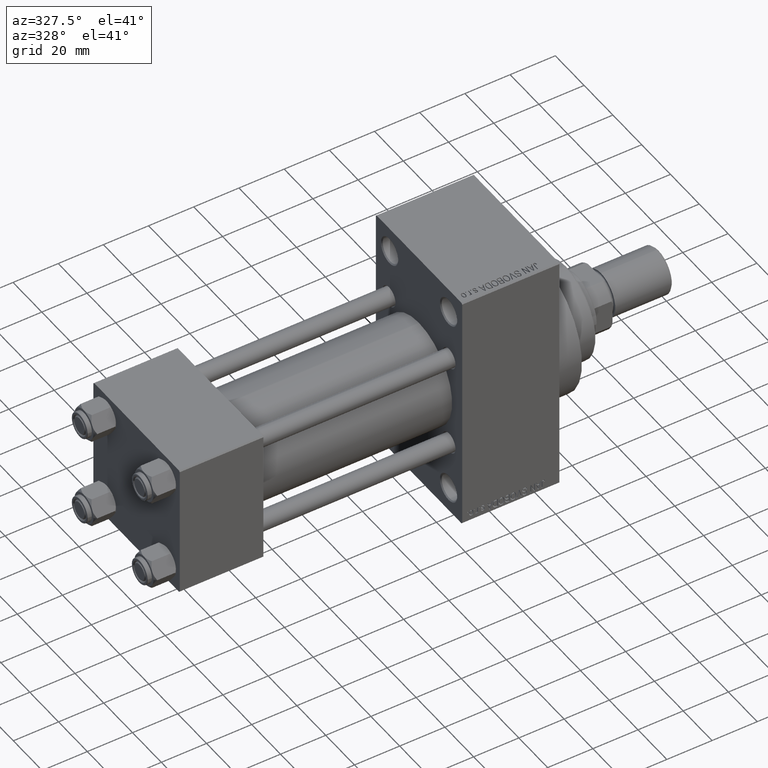
[diagram: clean part render]
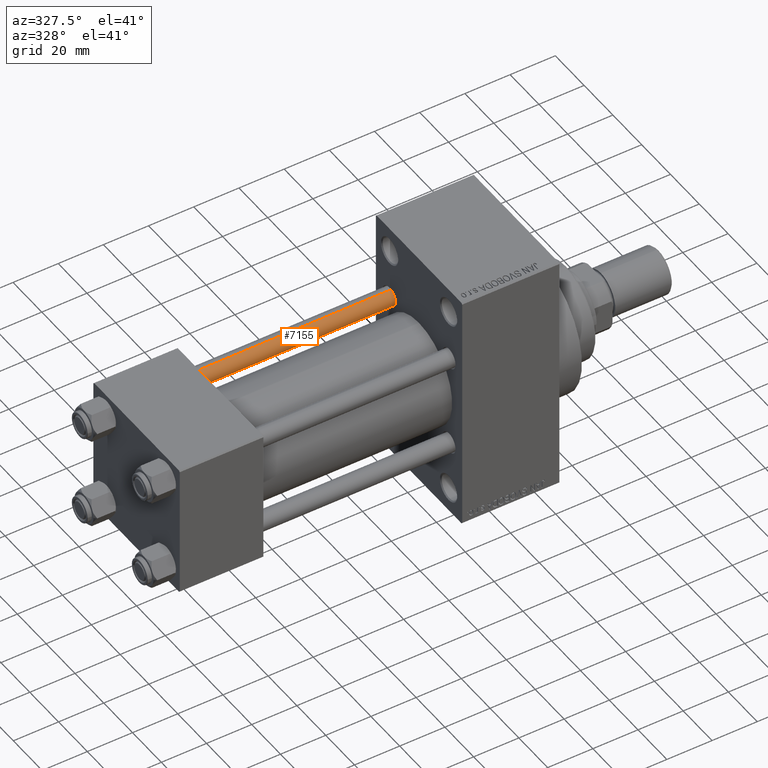
[diagram: same view with one face highlighted and labeled with its STEP entity id]
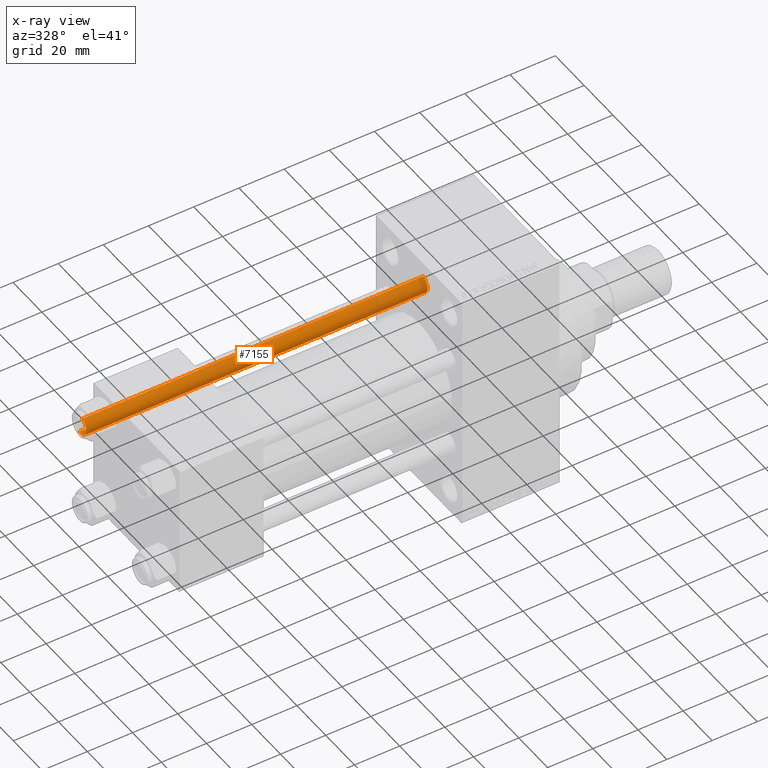
[diagram: x-ray of the same camera — body ghosted, the highlighted face saturated]
A machine part, auxiliary view. The second image highlights one B-rep face of the part: STEP entity #7155.
The next image is the same camera in x-ray: the body ghosted, the highlighted face saturated — about 2% of this face is hidden behind the body in this view.
In plain terms, the highlighted cylindrical surface (edge-blend (fillet) strip) has radius 4 mm, axis along (-1, -0, 0).
Its self-contained STEP definition (entity closure, byte-faithful):
#182 = VERTEX_POINT ( 'NONE', #27810 ) ;
#509 = VECTOR ( 'NONE', #9675, 1000.000000000000000 ) ;
#1035 = AXIS2_PLACEMENT_3D ( 'NONE', #8149, #22122, #26221 ) ;
#1364 = CARTESIAN_POINT ( 'NONE',  ( 0.000000000000000000, 0.000000000000000000, 151.5000000000000284 ) ) ;
#2723 = EDGE_LOOP ( 'NONE', ( #16481, #5066, #22183, #18442 ) ) ;
#5066 = ORIENTED_EDGE ( 'NONE', *, *, #8261, .T. ) ;
#6165 = DIRECTION ( 'NONE',  ( 1.000000000000000000, 0.000000000000000000, 0.000000000000000000 ) ) ;
#6936 = FACE_OUTER_BOUND ( 'NONE', #2723, .T. ) ;
#7155 = ADVANCED_FACE ( 'NONE', ( #6936 ), #18042, .T. ) ;
#8149 = CARTESIAN_POINT ( 'NONE',  ( 0.000000000000000000, 0.000000000000000000, 152.0000000000000000 ) ) ;
#8261 = EDGE_CURVE ( 'NONE', #33403, #182, #21866, .T. ) ;
#9675 = DIRECTION ( 'NONE',  ( -0.000000000000000000, -0.000000000000000000, -1.000000000000000000 ) ) ;
#14052 = DIRECTION ( 'NONE',  ( -0.000000000000000000, -0.000000000000000000, -1.000000000000000000 ) ) ;
#15172 = CARTESIAN_POINT ( 'NONE',  ( -4.000000000000000000, 0.000000000000000000, 0.5000000000000281997 ) ) ;
#16481 = ORIENTED_EDGE ( 'NONE', *, *, #37080, .F. ) ;
#17677 = CARTESIAN_POINT ( 'NONE',  ( 4.000000000000000000, 4.898587196589412829E-16, 152.0000000000000000 ) ) ;
#18042 = CYLINDRICAL_SURFACE ( 'NONE', #1035, 4.000000000000000000 ) ;
#18442 = ORIENTED_EDGE ( 'NONE', *, *, #32468, .T. ) ;
#20505 = CARTESIAN_POINT ( 'NONE',  ( -4.000000000000000000, 0.000000000000000000, 152.0000000000000000 ) ) ;
#21866 = CIRCLE ( 'NONE', #46512, 4.000000000000000000 ) ;
#22104 = CIRCLE ( 'NONE', #22902, 4.000000000000000000 ) ;
#22122 = DIRECTION ( 'NONE',  ( -0.000000000000000000, -0.000000000000000000, -1.000000000000000000 ) ) ;
#22183 = ORIENTED_EDGE ( 'NONE', *, *, #34994, .T. ) ;
#22902 = AXIS2_PLACEMENT_3D ( 'NONE', #35618, #36090, #42611 ) ;
#23869 = CARTESIAN_POINT ( 'NONE',  ( 4.000000000000000000, 4.898587196589412829E-16, 0.5000000000000281997 ) ) ;
#25235 = VECTOR ( 'NONE', #14052, 1000.000000000000000 ) ;
#26221 = DIRECTION ( 'NONE',  ( -1.000000000000000000, 0.000000000000000000, 0.000000000000000000 ) ) ;
#27810 = CARTESIAN_POINT ( 'NONE',  ( -4.000000000000000000, 0.000000000000000000, 151.5000000000000284 ) ) ;
#31581 = LINE ( 'NONE', #20505, #509 ) ;
#32468 = EDGE_CURVE ( 'NONE', #40862, #33245, #22104, .T. ) ;
#33245 = VERTEX_POINT ( 'NONE', #23869 ) ;
#33403 = VERTEX_POINT ( 'NONE', #44359 ) ;
#34994 = EDGE_CURVE ( 'NONE', #182, #40862, #31581, .T. ) ;
#35359 = DIRECTION ( 'NONE',  ( 0.000000000000000000, 0.000000000000000000, -1.000000000000000000 ) ) ;
#35618 = CARTESIAN_POINT ( 'NONE',  ( 0.000000000000000000, 0.000000000000000000, 0.5000000000000281997 ) ) ;
#36090 = DIRECTION ( 'NONE',  ( -0.000000000000000000, -0.000000000000000000, 1.000000000000000000 ) ) ;
#36891 = LINE ( 'NONE', #17677, #25235 ) ;
#37080 = EDGE_CURVE ( 'NONE', #33403, #33245, #36891, .T. ) ;
#40862 = VERTEX_POINT ( 'NONE', #15172 ) ;
#42611 = DIRECTION ( 'NONE',  ( 1.000000000000000000, 0.000000000000000000, 0.000000000000000000 ) ) ;
#44359 = CARTESIAN_POINT ( 'NONE',  ( 4.000000000000000000, 4.898587196589412829E-16, 151.5000000000000284 ) ) ;
#46512 = AXIS2_PLACEMENT_3D ( 'NONE', #1364, #35359, #6165 ) ;